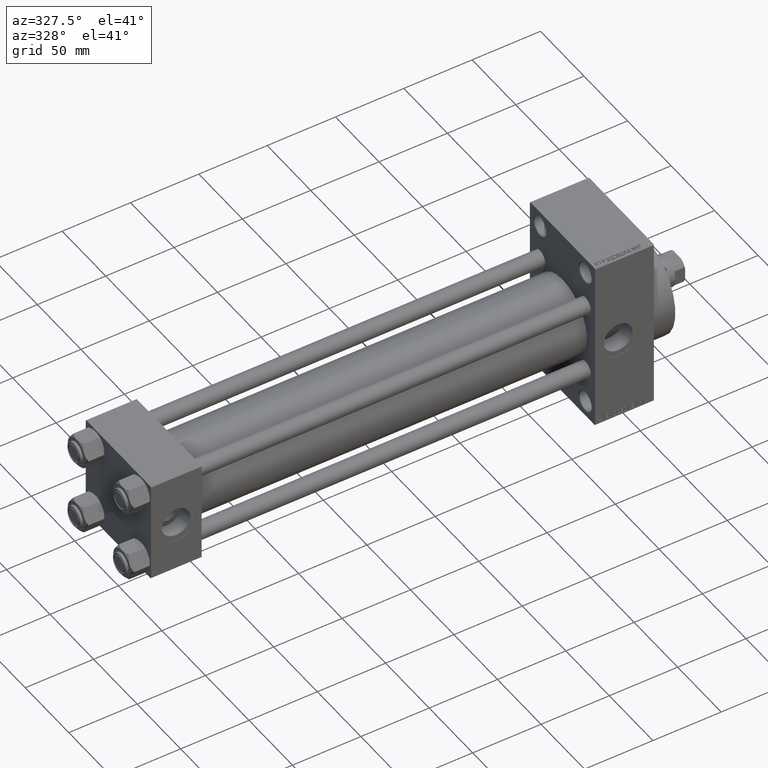
[diagram: clean part render]
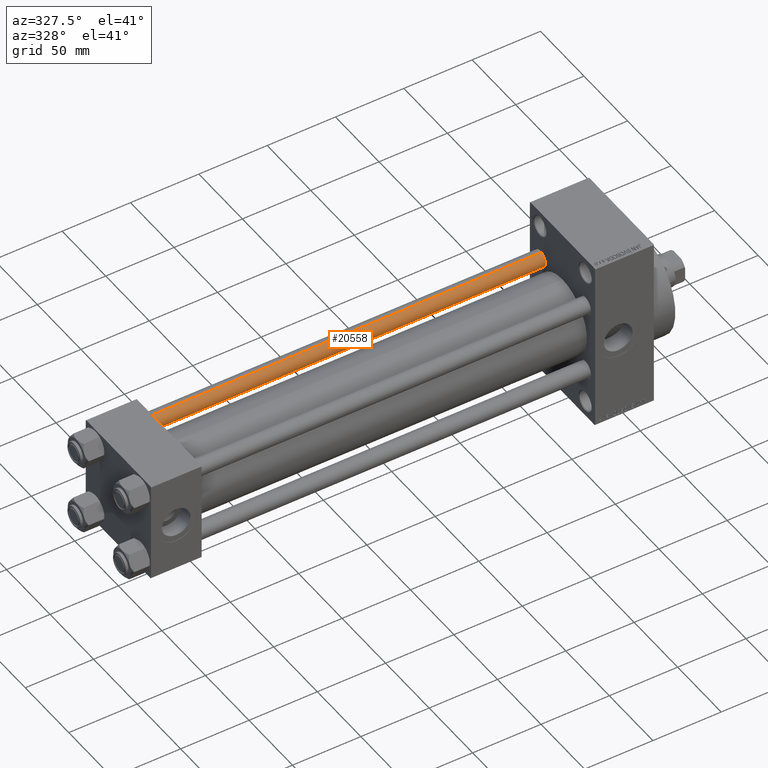
[diagram: same view with one face highlighted and labeled with its STEP entity id]
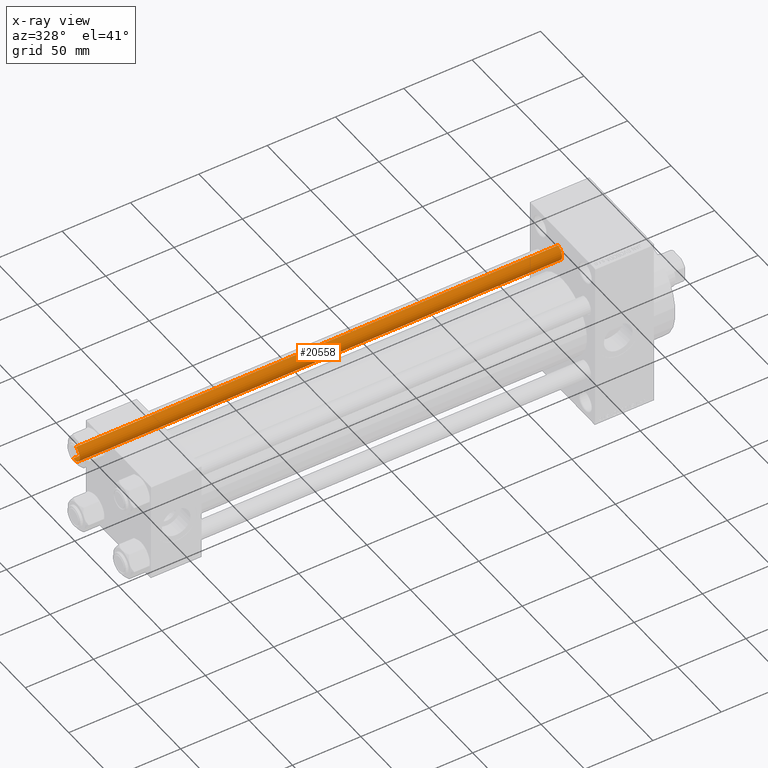
[diagram: x-ray of the same camera — body ghosted, the highlighted face saturated]
A machine part, auxiliary view. The second image highlights one B-rep face of the part: STEP entity #20558.
The next image is the same camera in x-ray: the body ghosted, the highlighted face saturated — about 0% of this face is hidden behind the body in this view.
In plain terms, the highlighted cylindrical surface (edge-blend (fillet) strip) has radius 6 mm, axis along (-1, -0, 0).
Its self-contained STEP definition (entity closure, byte-faithful):
#4986 = AXIS2_PLACEMENT_3D ( 'NONE', #45510, #37526, #22596 ) ;
#6179 = VERTEX_POINT ( 'NONE', #45803 ) ;
#7993 = CARTESIAN_POINT ( 'NONE',  ( 0.000000000000000000, 0.000000000000000000, 353.5000000000000000 ) ) ;
#8348 = EDGE_LOOP ( 'NONE', ( #32813, #37485, #16382, #33610 ) ) ;
#8733 = LINE ( 'NONE', #15949, #37780 ) ;
#10625 = AXIS2_PLACEMENT_3D ( 'NONE', #7993, #11250, #41633 ) ;
#11250 = DIRECTION ( 'NONE',  ( 0.000000000000000000, 0.000000000000000000, -1.000000000000000000 ) ) ;
#15355 = CARTESIAN_POINT ( 'NONE',  ( -6.000000000000000888, 0.000000000000000000, 353.5000000000000000 ) ) ;
#15493 = CARTESIAN_POINT ( 'NONE',  ( 0.000000000000000000, 0.000000000000000000, 0.5000000000000559552 ) ) ;
#15949 = CARTESIAN_POINT ( 'NONE',  ( 6.000000000000000888, 7.347880794884120722E-16, 354.0000000000000000 ) ) ;
#16382 = ORIENTED_EDGE ( 'NONE', *, *, #26838, .T. ) ;
#19224 = DIRECTION ( 'NONE',  ( -0.000000000000000000, -0.000000000000000000, 1.000000000000000000 ) ) ;
#19552 = DIRECTION ( 'NONE',  ( -0.000000000000000000, -0.000000000000000000, -1.000000000000000000 ) ) ;
#20558 = ADVANCED_FACE ( 'NONE', ( #22349 ), #25567, .T. ) ;
#20631 = VERTEX_POINT ( 'NONE', #15355 ) ;
#20752 = VERTEX_POINT ( 'NONE', #28526 ) ;
#22038 = CIRCLE ( 'NONE', #35523, 6.000000000000000888 ) ;
#22349 = FACE_OUTER_BOUND ( 'NONE', #8348, .T. ) ;
#22596 = DIRECTION ( 'NONE',  ( -1.000000000000000000, 0.000000000000000000, 0.000000000000000000 ) ) ;
#22754 = CARTESIAN_POINT ( 'NONE',  ( 6.000000000000000888, 7.347880794884120722E-16, 0.5000000000000559552 ) ) ;
#23445 = DIRECTION ( 'NONE',  ( 1.000000000000000000, 0.000000000000000000, 0.000000000000000000 ) ) ;
#25526 = EDGE_CURVE ( 'NONE', #20752, #33435, #8733, .T. ) ;
#25567 = CYLINDRICAL_SURFACE ( 'NONE', #4986, 6.000000000000000888 ) ;
#26838 = EDGE_CURVE ( 'NONE', #20631, #6179, #27022, .T. ) ;
#27022 = LINE ( 'NONE', #46197, #48170 ) ;
#28526 = CARTESIAN_POINT ( 'NONE',  ( 6.000000000000000888, 7.347880794884120722E-16, 353.5000000000000000 ) ) ;
#32238 = EDGE_CURVE ( 'NONE', #6179, #33435, #22038, .T. ) ;
#32813 = ORIENTED_EDGE ( 'NONE', *, *, #25526, .F. ) ;
#33435 = VERTEX_POINT ( 'NONE', #22754 ) ;
#33610 = ORIENTED_EDGE ( 'NONE', *, *, #32238, .T. ) ;
#35523 = AXIS2_PLACEMENT_3D ( 'NONE', #15493, #19224, #23445 ) ;
#36844 = CIRCLE ( 'NONE', #10625, 6.000000000000000888 ) ;
#37485 = ORIENTED_EDGE ( 'NONE', *, *, #48456, .T. ) ;
#37526 = DIRECTION ( 'NONE',  ( -0.000000000000000000, -0.000000000000000000, -1.000000000000000000 ) ) ;
#37780 = VECTOR ( 'NONE', #47083, 1000.000000000000000 ) ;
#41633 = DIRECTION ( 'NONE',  ( 1.000000000000000000, 0.000000000000000000, 0.000000000000000000 ) ) ;
#45510 = CARTESIAN_POINT ( 'NONE',  ( 0.000000000000000000, 0.000000000000000000, 354.0000000000000000 ) ) ;
#45803 = CARTESIAN_POINT ( 'NONE',  ( -6.000000000000000888, 0.000000000000000000, 0.5000000000000559552 ) ) ;
#46197 = CARTESIAN_POINT ( 'NONE',  ( -6.000000000000000888, 0.000000000000000000, 354.0000000000000000 ) ) ;
#47083 = DIRECTION ( 'NONE',  ( -0.000000000000000000, -0.000000000000000000, -1.000000000000000000 ) ) ;
#48170 = VECTOR ( 'NONE', #19552, 1000.000000000000000 ) ;
#48456 = EDGE_CURVE ( 'NONE', #20752, #20631, #36844, .T. ) ;